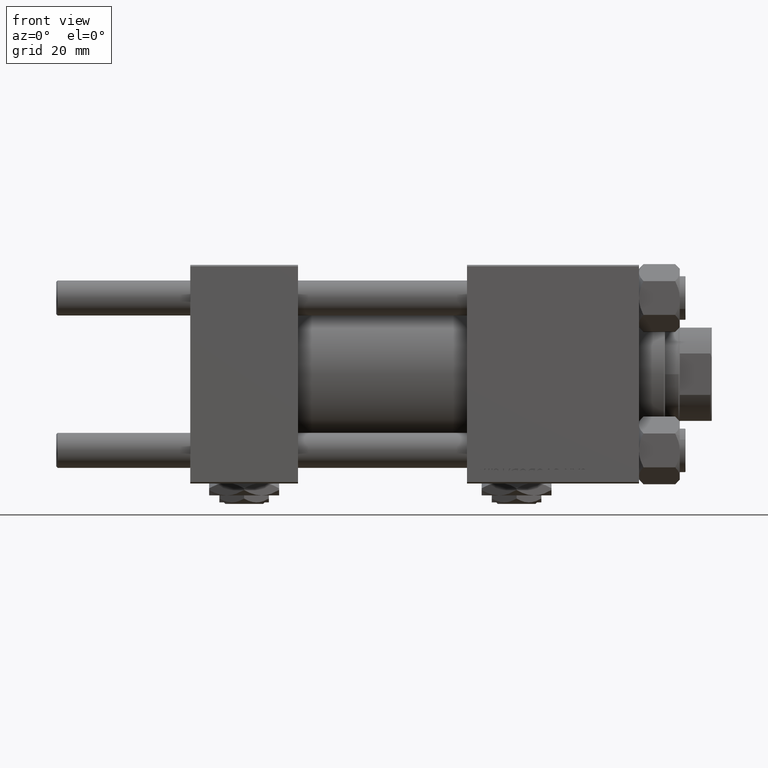
[diagram: clean part render]
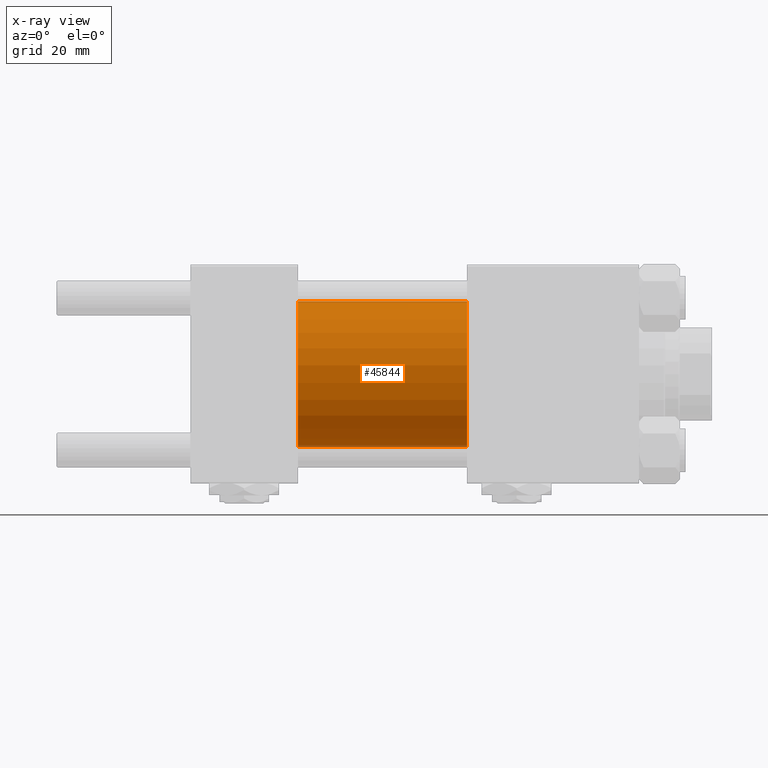
[diagram: x-ray — body ghosted, one internal face saturated and labeled with its STEP entity id]
A machine part, front view, then the same camera in x-ray: the body is ghosted and one INTERNAL B-rep face — a face not visible from any outside direction — is saturated and labeled: STEP entity #45844.
In plain terms, the highlighted cylindrical surface (partial cylindrical patch) has radius 25 mm, axis along (-1, -0, -0).
Its self-contained STEP definition (entity closure, byte-faithful):
#2860 = CARTESIAN_POINT ( 'NONE',  ( 95.00000000000000000, 0.000000000000000000, 25.00000000000000000 ) ) ;
#4260 = EDGE_LOOP ( 'NONE', ( #41840, #39201, #5026, #31697 ) ) ;
#5026 = ORIENTED_EDGE ( 'NONE', *, *, #36665, .F. ) ;
#6846 = VECTOR ( 'NONE', #28151, 1000.000000000000000 ) ;
#7214 = DIRECTION ( 'NONE',  ( -1.000000000000000000, -0.000000000000000000, -0.000000000000000000 ) ) ;
#7985 = FACE_OUTER_BOUND ( 'NONE', #4260, .T. ) ;
#9387 = VERTEX_POINT ( 'NONE', #48893 ) ;
#12453 = CARTESIAN_POINT ( 'NONE',  ( 95.00000000000000000, 3.061616997868382254E-15, -25.00000000000000000 ) ) ;
#15840 = DIRECTION ( 'NONE',  ( 0.000000000000000000, 0.000000000000000000, 1.000000000000000000 ) ) ;
#19337 = VERTEX_POINT ( 'NONE', #46149 ) ;
#21287 = CARTESIAN_POINT ( 'NONE',  ( 95.00000000000000000, 3.061616997868382254E-15, -25.00000000000000000 ) ) ;
#21864 = VECTOR ( 'NONE', #40205, 1000.000000000000000 ) ;
#23977 = LINE ( 'NONE', #51734, #6846 ) ;
#24545 = VERTEX_POINT ( 'NONE', #2860 ) ;
#24741 = LINE ( 'NONE', #12453, #21864 ) ;
#24839 = AXIS2_PLACEMENT_3D ( 'NONE', #28842, #44041, #28589 ) ;
#25666 = CIRCLE ( 'NONE', #47409, 25.00000000000000000 ) ;
#28151 = DIRECTION ( 'NONE',  ( -1.000000000000000000, -0.000000000000000000, -0.000000000000000000 ) ) ;
#28589 = DIRECTION ( 'NONE',  ( 0.000000000000000000, 0.000000000000000000, -1.000000000000000000 ) ) ;
#28842 = CARTESIAN_POINT ( 'NONE',  ( 37.00000000000000000, 0.000000000000000000, 0.000000000000000000 ) ) ;
#31697 = ORIENTED_EDGE ( 'NONE', *, *, #33318, .F. ) ;
#33318 = EDGE_CURVE ( 'NONE', #24545, #19337, #23977, .T. ) ;
#33378 = AXIS2_PLACEMENT_3D ( 'NONE', #51443, #7214, #15840 ) ;
#33667 = DIRECTION ( 'NONE',  ( 1.000000000000000000, 0.000000000000000000, 0.000000000000000000 ) ) ;
#36665 = EDGE_CURVE ( 'NONE', #19337, #9387, #47418, .T. ) ;
#37585 = CARTESIAN_POINT ( 'NONE',  ( 95.00000000000000000, 0.000000000000000000, 0.000000000000000000 ) ) ;
#39201 = ORIENTED_EDGE ( 'NONE', *, *, #51087, .T. ) ;
#39323 = EDGE_CURVE ( 'NONE', #24545, #39469, #25666, .T. ) ;
#39469 = VERTEX_POINT ( 'NONE', #21287 ) ;
#40205 = DIRECTION ( 'NONE',  ( -1.000000000000000000, -0.000000000000000000, -0.000000000000000000 ) ) ;
#41840 = ORIENTED_EDGE ( 'NONE', *, *, #39323, .T. ) ;
#44041 = DIRECTION ( 'NONE',  ( 1.000000000000000000, 0.000000000000000000, 0.000000000000000000 ) ) ;
#44101 = CYLINDRICAL_SURFACE ( 'NONE', #33378, 25.00000000000000000 ) ;
#45844 = ADVANCED_FACE ( 'NONE', ( #7985 ), #44101, .F. ) ;
#46149 = CARTESIAN_POINT ( 'NONE',  ( 37.00000000000000000, 0.000000000000000000, 25.00000000000000000 ) ) ;
#47409 = AXIS2_PLACEMENT_3D ( 'NONE', #37585, #33667, #49612 ) ;
#47418 = CIRCLE ( 'NONE', #24839, 25.00000000000000000 ) ;
#48893 = CARTESIAN_POINT ( 'NONE',  ( 37.00000000000000000, 3.061616997868382254E-15, -25.00000000000000000 ) ) ;
#49612 = DIRECTION ( 'NONE',  ( 0.000000000000000000, 0.000000000000000000, -1.000000000000000000 ) ) ;
#51087 = EDGE_CURVE ( 'NONE', #39469, #9387, #24741, .T. ) ;
#51443 = CARTESIAN_POINT ( 'NONE',  ( 95.00000000000000000, 0.000000000000000000, 0.000000000000000000 ) ) ;
#51734 = CARTESIAN_POINT ( 'NONE',  ( 95.00000000000000000, 0.000000000000000000, 25.00000000000000000 ) ) ;